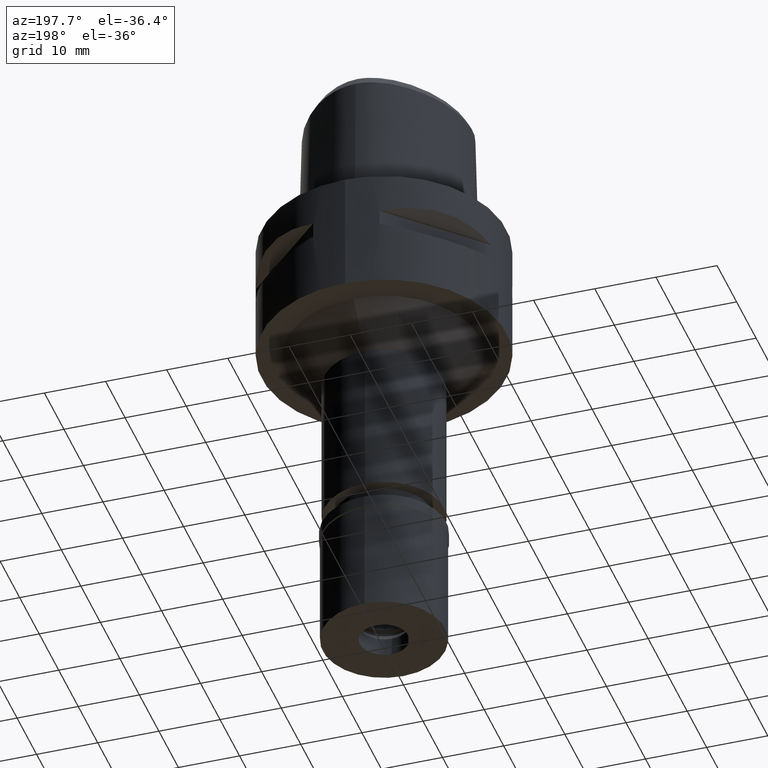
[diagram: clean part render]
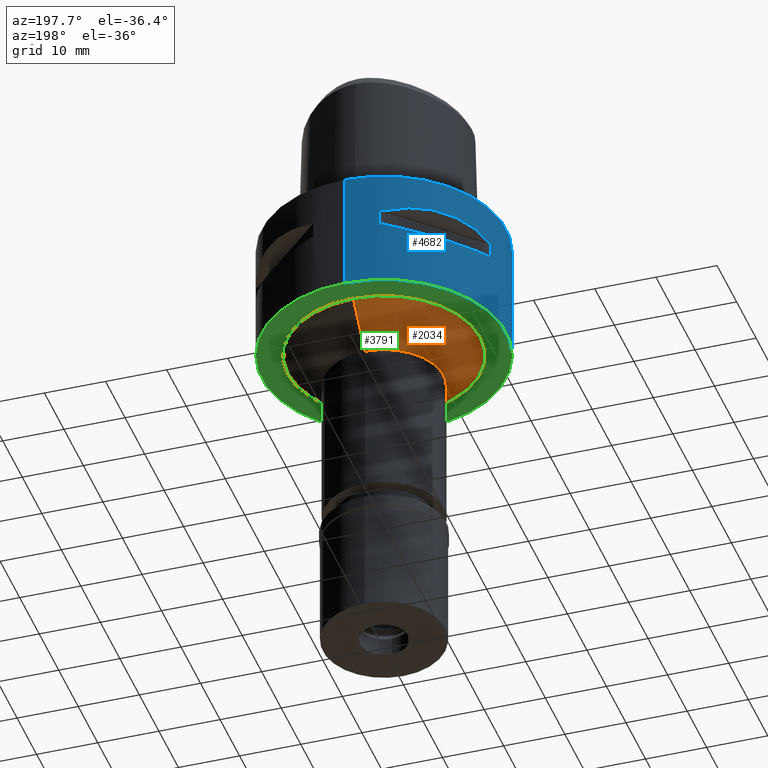
[diagram: same view with three faces highlighted in distinct colors, each labeled with its STEP entity id]
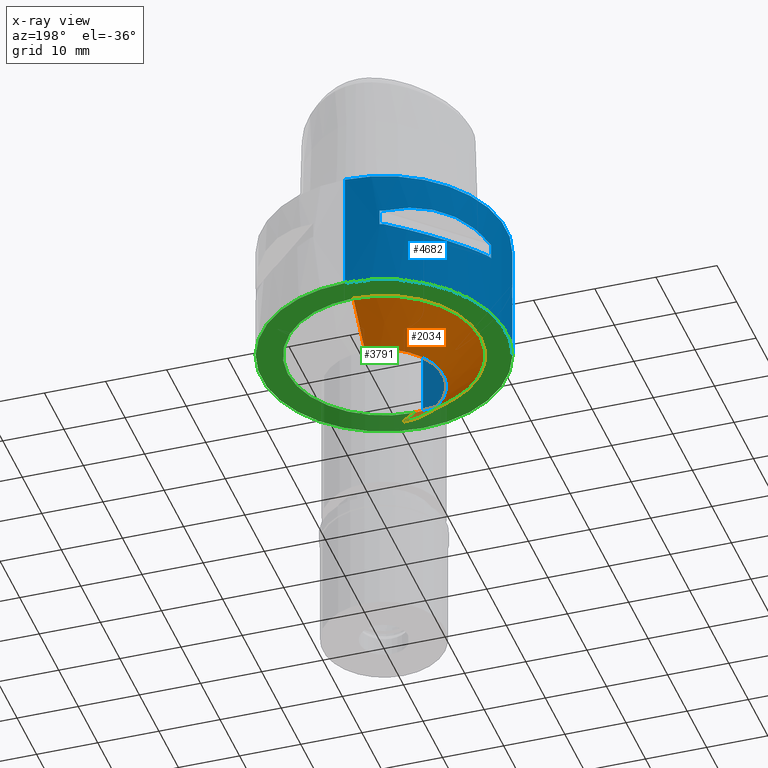
[diagram: x-ray of the same camera — body ghosted, the three highlighted faces saturated]
A machine part, auxiliary view with three faces highlighted in distinct colors.
The next image is the same camera in x-ray (body ghosted, the three faces saturated) — at least one of them is partly hidden behind the body in this view.
Their STEP definitions:

[orange] entity #2034 — the highlighted conical surface has half-angle 45 deg.
#104 = AXIS2_PLACEMENT_3D ( 'NONE', #3265, #2823, #4296 ) ;
#152 = DIRECTION ( 'NONE',  ( 0.0000000000000000000, 0.0000000000000000000, -1.000000000000000000 ) ) ;
#261 = CARTESIAN_POINT ( 'NONE',  ( 0.0000000000000000000, -15.75000000000000000, -20.00000000000000000 ) ) ;
#328 = CARTESIAN_POINT ( 'NONE',  ( 0.0000000000000000000, 9.750000000000000000, -26.00000000000000000 ) ) ;
#374 = CARTESIAN_POINT ( 'NONE',  ( 0.0000000000000000000, -9.750000000000000000, -26.00000000000000000 ) ) ;
#379 = ORIENTED_EDGE ( 'NONE', *, *, #4592, .F. ) ;
#409 = CARTESIAN_POINT ( 'NONE',  ( 0.0000000000000000000, 0.0000000000000000000, -23.00000000000000000 ) ) ;
#781 = FACE_OUTER_BOUND ( 'NONE', #2679, .T. ) ;
#878 = AXIS2_PLACEMENT_3D ( 'NONE', #4109, #152, #1970 ) ;
#934 = VERTEX_POINT ( 'NONE', #2743 ) ;
#1231 = EDGE_CURVE ( 'NONE', #3078, #934, #2854, .T. ) ;
#1348 = LINE ( 'NONE', #2066, #2396 ) ;
#1491 = AXIS2_PLACEMENT_3D ( 'NONE', #409, #2994, #1962 ) ;
#1896 = ORIENTED_EDGE ( 'NONE', *, *, #3919, .F. ) ;
#1955 = ORIENTED_EDGE ( 'NONE', *, *, #1231, .T. ) ;
#1962 = DIRECTION ( 'NONE',  ( 0.0000000000000000000, 1.000000000000000000, 0.0000000000000000000 ) ) ;
#1970 = DIRECTION ( 'NONE',  ( 0.0000000000000000000, -1.000000000000000000, 0.0000000000000000000 ) ) ;
#2034 = ADVANCED_FACE ( 'NONE', ( #781 ), #2859, .T. ) ;
#2066 = CARTESIAN_POINT ( 'NONE',  ( 0.0000000000000000000, 15.75000000000000000, -20.00000000000000000 ) ) ;
#2138 = DIRECTION ( 'NONE',  ( 0.0000000000000000000, 0.7071067811865474617, -0.7071067811865474617 ) ) ;
#2240 = ORIENTED_EDGE ( 'NONE', *, *, #2760, .T. ) ;
#2298 = CARTESIAN_POINT ( 'NONE',  ( 0.0000000000000000000, -15.75000000000000000, -20.00000000000000000 ) ) ;
#2396 = VECTOR ( 'NONE', #2416, 1000.000000000000114 ) ;
#2416 = DIRECTION ( 'NONE',  ( 0.0000000000000000000, -0.7071067811865474617, -0.7071067811865474617 ) ) ;
#2679 = EDGE_LOOP ( 'NONE', ( #379, #1896, #1955, #2240 ) ) ;
#2743 = CARTESIAN_POINT ( 'NONE',  ( 0.0000000000000000000, 15.75000000000000000, -20.00000000000000000 ) ) ;
#2760 = EDGE_CURVE ( 'NONE', #934, #3299, #1348, .T. ) ;
#2823 = DIRECTION ( 'NONE',  ( 0.0000000000000000000, 0.0000000000000000000, -1.000000000000000000 ) ) ;
#2854 = CIRCLE ( 'NONE', #104, 15.75000000000000000 ) ;
#2859 = CONICAL_SURFACE ( 'NONE', #1491, 12.75000000000000000, 0.7853981633972997312 ) ;
#2994 = DIRECTION ( 'NONE',  ( 0.0000000000000000000, 0.0000000000000000000, 1.000000000000000000 ) ) ;
#3078 = VERTEX_POINT ( 'NONE', #2298 ) ;
#3102 = VECTOR ( 'NONE', #2138, 1000.000000000000114 ) ;
#3265 = CARTESIAN_POINT ( 'NONE',  ( 0.0000000000000000000, 0.0000000000000000000, -20.00000000000000000 ) ) ;
#3272 = CIRCLE ( 'NONE', #878, 9.750000000000000000 ) ;
#3299 = VERTEX_POINT ( 'NONE', #328 ) ;
#3578 = LINE ( 'NONE', #261, #3102 ) ;
#3919 = EDGE_CURVE ( 'NONE', #3078, #4576, #3578, .T. ) ;
#4109 = CARTESIAN_POINT ( 'NONE',  ( 0.0000000000000000000, 0.0000000000000000000, -26.00000000000000000 ) ) ;
#4296 = DIRECTION ( 'NONE',  ( 0.0000000000000000000, -1.000000000000000000, 0.0000000000000000000 ) ) ;
#4576 = VERTEX_POINT ( 'NONE', #374 ) ;
#4592 = EDGE_CURVE ( 'NONE', #4576, #3299, #3272, .T. ) ;

[blue] entity #4682 — the highlighted cylindrical surface (partial cylindrical patch) has radius 20 mm, axis along (0, 0, -1).
#22 = CARTESIAN_POINT ( 'NONE',  ( -19.24906036483000094, 5.428966298579000593, -6.700000000000000178 ) ) ;
#40 = AXIS2_PLACEMENT_3D ( 'NONE', #559, #1278, #2732 ) ;
#54 = ORIENTED_EDGE ( 'NONE', *, *, #1785, .T. ) ;
#64 = FACE_OUTER_BOUND ( 'NONE', #3928, .T. ) ;
#78 = CARTESIAN_POINT ( 'NONE',  ( -17.04620345718620200, -10.46079808215881357, -10.28075718178500608 ) ) ;
#83 = CARTESIAN_POINT ( 'NONE',  ( -19.24906036483000094, 5.428966298579000593, -9.299999999999998934 ) ) ;
#101 = DIRECTION ( 'NONE',  ( 0.0000000000000000000, 0.0000000000000000000, 1.000000000000000000 ) ) ;
#122 = CARTESIAN_POINT ( 'NONE',  ( -15.24067460454800660, -13.04353085700942927, -10.59804935437007423 ) ) ;
#147 = CARTESIAN_POINT ( 'NONE',  ( -13.59286613331923554, -14.69143800708852154, -10.59808963984202279 ) ) ;
#183 = ORIENTED_EDGE ( 'NONE', *, *, #763, .F. ) ;
#185 = EDGE_CURVE ( 'NONE', #2432, #1753, #1897, .T. ) ;
#195 = CIRCLE ( 'NONE', #1948, 20.00000000000000000 ) ;
#209 = CARTESIAN_POINT ( 'NONE',  ( -11.78776565407260257, 16.23560874346874527, -5.510106948661030124 ) ) ;
#232 = VERTEX_POINT ( 'NONE', #4511 ) ;
#238 = ORIENTED_EDGE ( 'NONE', *, *, #3240, .T. ) ;
#262 = ORIENTED_EDGE ( 'NONE', *, *, #4171, .T. ) ;
#265 = DIRECTION ( 'NONE',  ( -0.9624530182415160784, 0.2714483149290045083, 0.0000000000000000000 ) ) ;
#277 = CARTESIAN_POINT ( 'NONE',  ( -16.99353821201610160, 10.54606745823076075, -10.29406776248773525 ) ) ;
#279 = CIRCLE ( 'NONE', #2942, 20.00000000000000711 ) ;
#280 = CARTESIAN_POINT ( 'NONE',  ( -19.06685920573999837, -6.037787676659999825, -6.700000000000000178 ) ) ;
#344 = CARTESIAN_POINT ( 'NONE',  ( -10.48392761238963189, 17.03197491928957419, -10.28439099668885959 ) ) ;
#370 = CARTESIAN_POINT ( 'NONE',  ( -14.69143800708833680, 13.59286613331856408, -10.59808963984166041 ) ) ;
#401 = EDGE_CURVE ( 'NONE', #2195, #1337, #1193, .T. ) ;
#414 = CARTESIAN_POINT ( 'NONE',  ( -6.037787676659999825, 19.06685920573999837, -6.700000000000000178 ) ) ;
#439 = CARTESIAN_POINT ( 'NONE',  ( 0.0000000000000000000, 20.00000000000000000, 0.0000000000000000000 ) ) ;
#463 = CYLINDRICAL_SURFACE ( 'NONE', #734, 20.00000000000000000 ) ;
#476 = CARTESIAN_POINT ( 'NONE',  ( -17.11329306682763018, -10.35096251251622235, -10.26330621669029242 ) ) ;
#503 = CARTESIAN_POINT ( 'NONE',  ( -17.07309310408707148, -10.41688921769623910, -10.27380911531041008 ) ) ;
#528 = CARTESIAN_POINT ( 'NONE',  ( -13.03584482972175529, -15.24842641774012897, -5.401917027256927462 ) ) ;
#559 = CARTESIAN_POINT ( 'NONE',  ( 0.0000000000000000000, 1.265672466918999865E-14, -9.299999999999998934 ) ) ;
#597 = EDGE_LOOP ( 'NONE', ( #2270, #2146, #3987, #4189, #629, #956, #2286, #2737 ) ) ;
#625 = LINE ( 'NONE', #2084, #4008 ) ;
#626 = CARTESIAN_POINT ( 'NONE',  ( -17.89933467640222631, -9.064227960972582210, -5.942799019125479809 ) ) ;
#629 = ORIENTED_EDGE ( 'NONE', *, *, #3415, .T. ) ;
#635 = CARTESIAN_POINT ( 'NONE',  ( -15.24842641776397123, 13.03584482969793967, -5.401917027265890958 ) ) ;
#650 = CIRCLE ( 'NONE', #2938, 20.00000000000000711 ) ;
#717 = LINE ( 'NONE', #2896, #4354 ) ;
#734 = AXIS2_PLACEMENT_3D ( 'NONE', #1564, #2602, #3021 ) ;
#758 = CARTESIAN_POINT ( 'NONE',  ( 0.0000000000000000000, 1.265672466918999865E-14, -6.700000000000000178 ) ) ;
#763 = EDGE_CURVE ( 'NONE', #3494, #4624, #717, .T. ) ;
#786 = VERTEX_POINT ( 'NONE', #2829 ) ;
#793 = CIRCLE ( 'NONE', #40, 20.00000000000000000 ) ;
#826 = EDGE_CURVE ( 'NONE', #973, #3255, #3773, .T. ) ;
#875 = DIRECTION ( 'NONE',  ( -0.9624530182415160784, -0.2714483149290045083, 0.0000000000000000000 ) ) ;
#902 = CARTESIAN_POINT ( 'NONE',  ( -6.037787676659999825, -19.06685920573999837, -9.299999999999998934 ) ) ;
#904 = CARTESIAN_POINT ( 'NONE',  ( -7.588842109405632641, -18.57569612330578224, -6.267301168158926572 ) ) ;
#942 = VERTEX_POINT ( 'NONE', #1984 ) ;
#956 = ORIENTED_EDGE ( 'NONE', *, *, #2816, .F. ) ;
#959 = CIRCLE ( 'NONE', #1428, 20.00000000000000000 ) ;
#973 = VERTEX_POINT ( 'NONE', #4608 ) ;
#1030 = CARTESIAN_POINT ( 'NONE',  ( -6.037787676656000357, 19.06685920573999837, -9.299999999999998934 ) ) ;
#1042 = DIRECTION ( 'NONE',  ( 0.0000000000000000000, 0.0000000000000000000, 1.000000000000000000 ) ) ;
#1052 = AXIS2_PLACEMENT_3D ( 'NONE', #758, #2222, #1256 ) ;
#1057 = CARTESIAN_POINT ( 'NONE',  ( -17.00564674891200312, 10.52654956716414603, -10.29104290631410557 ) ) ;
#1060 = VERTEX_POINT ( 'NONE', #902 ) ;
#1087 = EDGE_CURVE ( 'NONE', #942, #2195, #3816, .T. ) ;
#1145 = CARTESIAN_POINT ( 'NONE',  ( -17.03197491928961327, -10.48392761238962478, -10.28439099668888623 ) ) ;
#1193 = B_SPLINE_CURVE_WITH_KNOTS ( 'NONE', 3,
 ( #3865, #1708, #626, #2062, #1234, #528, #2718, #1656, #904, #1985 ),
 .UNSPECIFIED., .F., .F.,
 ( 4, 2, 2, 2, 4 ),
 ( 0.0000000000000000000, 0.2500000000000000000, 0.5000000000000000000, 0.7500000000000000000, 1.000000000000000000 ),
 .UNSPECIFIED. ) ;
#1215 = CARTESIAN_POINT ( 'NONE',  ( -19.24906036483000094, 5.428966298580000682, -9.299999999999998934 ) ) ;
#1234 = CARTESIAN_POINT ( 'NONE',  ( -15.24842641774013252, -13.03584482972175707, -5.401930550037072010 ) ) ;
#1248 = CARTESIAN_POINT ( 'NONE',  ( 0.0000000000000000000, 1.265672466918999865E-14, -6.700000000000000178 ) ) ;
#1256 = DIRECTION ( 'NONE',  ( -0.2714483149290045083, 0.9624530182415160784, 0.0000000000000000000 ) ) ;
#1278 = DIRECTION ( 'NONE',  ( 0.0000000000000000000, 0.0000000000000000000, -1.000000000000000000 ) ) ;
#1314 = CARTESIAN_POINT ( 'NONE',  ( 0.0000000000000000000, 20.00000000000000000, -20.00000000000000000 ) ) ;
#1337 = VERTEX_POINT ( 'NONE', #2937 ) ;
#1400 = CARTESIAN_POINT ( 'NONE',  ( -16.96779488243643641, 10.58740791271516279, -10.30043526206624982 ) ) ;
#1428 = AXIS2_PLACEMENT_3D ( 'NONE', #3617, #4615, #4711 ) ;
#1449 = CARTESIAN_POINT ( 'NONE',  ( -17.38810193308528795, -9.886368560434451780, -10.18582677984705676 ) ) ;
#1496 = DIRECTION ( 'NONE',  ( 0.0000000000000000000, 0.0000000000000000000, -1.000000000000000000 ) ) ;
#1498 = VERTEX_POINT ( 'NONE', #2027 ) ;
#1511 = ORIENTED_EDGE ( 'NONE', *, *, #3220, .F. ) ;
#1520 = CARTESIAN_POINT ( 'NONE',  ( -6.037787676659999825, -19.06685920573999837, -9.299999999999998934 ) ) ;
#1527 = FACE_BOUND ( 'NONE', #597, .T. ) ;
#1564 = CARTESIAN_POINT ( 'NONE',  ( 0.0000000000000000000, 1.265672466918999865E-14, 3.350000000000000089 ) ) ;
#1584 = CARTESIAN_POINT ( 'NONE',  ( -10.54606745823081049, -16.99353821201611936, -10.29406776248777078 ) ) ;
#1605 = CARTESIAN_POINT ( 'NONE',  ( 0.0000000000000000000, 1.265672466918999865E-14, -6.700000000000000178 ) ) ;
#1629 = EDGE_CURVE ( 'NONE', #3557, #3255, #1716, .T. ) ;
#1634 = DIRECTION ( 'NONE',  ( 0.0000000000000000000, 1.000000000000000000, 0.0000000000000000000 ) ) ;
#1635 = AXIS2_PLACEMENT_3D ( 'NONE', #4378, #3159, #265 ) ;
#1656 = CARTESIAN_POINT ( 'NONE',  ( -9.064296220445351437, -17.89930010962306284, -5.942778734625640880 ) ) ;
#1686 = B_SPLINE_CURVE_WITH_KNOTS ( 'NONE', 3,
 ( #2700, #1746, #3496, #209, #4230, #635, #2780, #3130, #3206, #2421 ),
 .UNSPECIFIED., .F., .F.,
 ( 4, 2, 2, 2, 4 ),
 ( 0.0000000000000000000, 0.2500000000000000000, 0.5000000000000000000, 0.7500000000000000000, 1.000000000000000000 ),
 .UNSPECIFIED. ) ;
#1708 = CARTESIAN_POINT ( 'NONE',  ( -18.57571147347043450, -7.588793634791463738, -6.267314691158818007 ) ) ;
#1716 = CIRCLE ( 'NONE', #1635, 20.00000000000000000 ) ;
#1739 = CARTESIAN_POINT ( 'NONE',  ( -17.88526274347858447, 9.102657680285229702, -10.06884320373687380 ) ) ;
#1746 = CARTESIAN_POINT ( 'NONE',  ( -7.588793634823589151, 18.57571147346028795, -6.267314691149851846 ) ) ;
#1753 = VERTEX_POINT ( 'NONE', #414 ) ;
#1754 = AXIS2_PLACEMENT_3D ( 'NONE', #1605, #3817, #875 ) ;
#1764 = CARTESIAN_POINT ( 'NONE',  ( -16.83802176568580933, 10.79324770715564696, -10.33148935319440120 ) ) ;
#1785 = EDGE_CURVE ( 'NONE', #1337, #1498, #3712, .T. ) ;
#1800 = VERTEX_POINT ( 'NONE', #2600 ) ;
#1808 = CARTESIAN_POINT ( 'NONE',  ( -9.886368560432201136, 17.38810193308599850, -10.18582677984641549 ) ) ;
#1809 = CARTESIAN_POINT ( 'NONE',  ( -18.37435100509406638, -7.974729623736128481, -9.808037949574913483 ) ) ;
#1835 = EDGE_CURVE ( 'NONE', #3557, #4414, #3443, .T. ) ;
#1843 = ORIENTED_EDGE ( 'NONE', *, *, #2003, .F. ) ;
#1872 = CARTESIAN_POINT ( 'NONE',  ( -12.72622750481284903, -15.46304525447651734, -10.55929324096001487 ) ) ;
#1897 = CIRCLE ( 'NONE', #1052, 20.00000000000000000 ) ;
#1937 = CARTESIAN_POINT ( 'NONE',  ( -10.52654956716422063, -17.00564674891198891, -10.29104290631413221 ) ) ;
#1948 = AXIS2_PLACEMENT_3D ( 'NONE', #2043, #4589, #1634 ) ;
#1965 = DIRECTION ( 'NONE',  ( 0.0000000000000000000, 0.0000000000000000000, -1.000000000000000000 ) ) ;
#1984 = CARTESIAN_POINT ( 'NONE',  ( -19.24906036483000094, -5.428966298580000682, -6.700000000000000178 ) ) ;
#1985 = CARTESIAN_POINT ( 'NONE',  ( -6.037787676659999825, -19.06685920573999837, -6.700000000000000178 ) ) ;
#2003 = EDGE_CURVE ( 'NONE', #1800, #1060, #4630, .T. ) ;
#2027 = CARTESIAN_POINT ( 'NONE',  ( -5.428966298579000593, -19.24906036483000094, -6.700000000000000178 ) ) ;
#2043 = CARTESIAN_POINT ( 'NONE',  ( 0.0000000000000000000, 1.265672466918999865E-14, -20.00000000000000000 ) ) ;
#2062 = CARTESIAN_POINT ( 'NONE',  ( -16.23560874349853478, -11.78776565403154741, -5.510106948674478922 ) ) ;
#2070 = VERTEX_POINT ( 'NONE', #2309 ) ;
#2084 = CARTESIAN_POINT ( 'NONE',  ( -19.24906036483000094, -5.428966298579000593, -6.700000000000000178 ) ) ;
#2087 = CARTESIAN_POINT ( 'NONE',  ( -15.46304525447618694, 12.72622750481166065, -10.55929324095938782 ) ) ;
#2094 = CARTESIAN_POINT ( 'NONE',  ( 0.0000000000000000000, 20.00000000000000000, 0.0000000000000000000 ) ) ;
#2146 = ORIENTED_EDGE ( 'NONE', *, *, #1835, .F. ) ;
#2154 = CARTESIAN_POINT ( 'NONE',  ( -18.81740308416140905, -6.825550513455381996, -9.519762796231688640 ) ) ;
#2180 = CARTESIAN_POINT ( 'NONE',  ( -10.41688921769588561, 17.07309310408716030, -10.27380911531028751 ) ) ;
#2195 = VERTEX_POINT ( 'NONE', #280 ) ;
#2222 = DIRECTION ( 'NONE',  ( 0.0000000000000000000, 0.0000000000000000000, 1.000000000000000000 ) ) ;
#2245 = AXIS2_PLACEMENT_3D ( 'NONE', #2293, #101, #4539 ) ;
#2270 = ORIENTED_EDGE ( 'NONE', *, *, #2910, .T. ) ;
#2286 = ORIENTED_EDGE ( 'NONE', *, *, #185, .T. ) ;
#2289 = CARTESIAN_POINT ( 'NONE',  ( -16.20025983931274283, -11.83046278585393729, -10.49456541975160384 ) ) ;
#2293 = CARTESIAN_POINT ( 'NONE',  ( 0.0000000000000000000, 1.265672466918999865E-14, -6.700000000000000178 ) ) ;
#2309 = CARTESIAN_POINT ( 'NONE',  ( -19.24906036483000094, -5.428966298579000593, -9.299999999999998934 ) ) ;
#2354 = VERTEX_POINT ( 'NONE', #1314 ) ;
#2410 = EDGE_CURVE ( 'NONE', #942, #2070, #625, .T. ) ;
#2421 = CARTESIAN_POINT ( 'NONE',  ( -19.06685920573999837, 6.037787676659999825, -6.700000000000000178 ) ) ;
#2432 = VERTEX_POINT ( 'NONE', #2687 ) ;
#2447 = LINE ( 'NONE', #4716, #2551 ) ;
#2508 = CARTESIAN_POINT ( 'NONE',  ( -19.06685920573999837, -6.037787676656000357, -9.299999999999998934 ) ) ;
#2530 = CARTESIAN_POINT ( 'NONE',  ( -9.258624582130485337, 17.73693809362665164, -10.07196314004843352 ) ) ;
#2548 = CIRCLE ( 'NONE', #4486, 20.00000000000000711 ) ;
#2551 = VECTOR ( 'NONE', #1042, 1000.000000000000000 ) ;
#2553 = CARTESIAN_POINT ( 'NONE',  ( -6.825550513452456336, 18.81740308416231500, -9.519762796230851976 ) ) ;
#2576 = CARTESIAN_POINT ( 'NONE',  ( -9.102657680280989538, -17.88526274347993450, -10.06884320373569608 ) ) ;
#2597 = CARTESIAN_POINT ( 'NONE',  ( -7.613705726455988199, -18.56782271116848904, -9.739635053951699817 ) ) ;
#2600 = CARTESIAN_POINT ( 'NONE',  ( -19.06685920573999837, -6.037787676656000357, -9.299999999999998934 ) ) ;
#2602 = DIRECTION ( 'NONE',  ( 0.0000000000000000000, 0.0000000000000000000, -1.000000000000000000 ) ) ;
#2663 = CARTESIAN_POINT ( 'NONE',  ( -10.64933512883080624, -16.92907764914579616, -10.30991069787626735 ) ) ;
#2684 = VERTEX_POINT ( 'NONE', #4172 ) ;
#2687 = CARTESIAN_POINT ( 'NONE',  ( -5.428966298579000593, 19.24906036483000094, -6.700000000000000178 ) ) ;
#2700 = CARTESIAN_POINT ( 'NONE',  ( -6.037787676659999825, 19.06685920573999837, -6.700000000000000178 ) ) ;
#2718 = CARTESIAN_POINT ( 'NONE',  ( -11.78782756882609206, -16.23556379045567866, -5.510086664174642657 ) ) ;
#2732 = DIRECTION ( 'NONE',  ( -0.2714483149290045083, -0.9624530182415160784, 0.0000000000000000000 ) ) ;
#2737 = ORIENTED_EDGE ( 'NONE', *, *, #4524, .T. ) ;
#2756 = DIRECTION ( 'NONE',  ( 0.0000000000000000000, 0.0000000000000000000, -1.000000000000000000 ) ) ;
#2780 = CARTESIAN_POINT ( 'NONE',  ( -16.23556379048548948, 11.78782756878505644, -5.510086664188085237 ) ) ;
#2800 = DIRECTION ( 'NONE',  ( 0.0000000000000000000, 0.0000000000000000000, -1.000000000000000000 ) ) ;
#2816 = EDGE_CURVE ( 'NONE', #2432, #2684, #3123, .T. ) ;
#2829 = CARTESIAN_POINT ( 'NONE',  ( -5.428966298580000682, -19.24906036483000094, -9.299999999999998934 ) ) ;
#2874 = CARTESIAN_POINT ( 'NONE',  ( -10.46079808215863771, 17.04620345718623753, -10.28075718178493858 ) ) ;
#2896 = CARTESIAN_POINT ( 'NONE',  ( 0.0000000000000000000, -20.00000000000000000, 0.0000000000000000000 ) ) ;
#2910 = EDGE_CURVE ( 'NONE', #232, #4414, #2548, .T. ) ;
#2937 = CARTESIAN_POINT ( 'NONE',  ( -6.037787676659999825, -19.06685920573999837, -6.700000000000000178 ) ) ;
#2938 = AXIS2_PLACEMENT_3D ( 'NONE', #3105, #2756, #3053 ) ;
#2942 = AXIS2_PLACEMENT_3D ( 'NONE', #3412, #1965, #4517 ) ;
#2970 = CARTESIAN_POINT ( 'NONE',  ( -10.58740791271525161, -16.96779488243645773, -10.30043526206630844 ) ) ;
#3021 = DIRECTION ( 'NONE',  ( 0.0000000000000000000, -1.000000000000000000, 0.0000000000000000000 ) ) ;
#3026 = EDGE_CURVE ( 'NONE', #1800, #2070, #650, .T. ) ;
#3042 = CARTESIAN_POINT ( 'NONE',  ( -11.07873582669489920, -16.65304730897261010, -10.37252388421141269 ) ) ;
#3053 = DIRECTION ( 'NONE',  ( -0.9533429602871387187, -0.3018893838328123858, 0.0000000000000000000 ) ) ;
#3054 = EDGE_CURVE ( 'NONE', #786, #1060, #793, .T. ) ;
#3105 = CARTESIAN_POINT ( 'NONE',  ( 0.0000000000000000000, 1.265672466918999865E-14, -9.299999999999998934 ) ) ;
#3123 = LINE ( 'NONE', #3898, #3648 ) ;
#3130 = CARTESIAN_POINT ( 'NONE',  ( -17.89930010964598850, 9.064296220400109405, -5.942778734639085236 ) ) ;
#3159 = DIRECTION ( 'NONE',  ( 0.0000000000000000000, 0.0000000000000000000, -1.000000000000000000 ) ) ;
#3171 = VECTOR ( 'NONE', #3796, 1000.000000000000000 ) ;
#3198 = CARTESIAN_POINT ( 'NONE',  ( -18.56782271116713900, 7.613705726460239021, -9.739635053952877541 ) ) ;
#3206 = CARTESIAN_POINT ( 'NONE',  ( -18.57569612331598208, 7.588842109373500122, -6.267301168167890069 ) ) ;
#3220 = EDGE_CURVE ( 'NONE', #786, #1498, #2447, .T. ) ;
#3221 = CARTESIAN_POINT ( 'NONE',  ( -16.92907764914576774, 10.64933512883065347, -10.30991069787617676 ) ) ;
#3240 = EDGE_CURVE ( 'NONE', #3453, #2354, #3622, .T. ) ;
#3255 = VERTEX_POINT ( 'NONE', #3905 ) ;
#3271 = DIRECTION ( 'NONE',  ( 0.0000000000000000000, 0.0000000000000000000, -1.000000000000000000 ) ) ;
#3273 = CARTESIAN_POINT ( 'NONE',  ( -17.73693809362544371, -9.258624582134340031, -10.07196314004953308 ) ) ;
#3295 = CARTESIAN_POINT ( 'NONE',  ( -13.04353085700981651, 15.24067460454939038, -10.59804935437078477 ) ) ;
#3341 = CARTESIAN_POINT ( 'NONE',  ( -10.79324770715592585, -16.83802176568588749, -10.33148935319455575 ) ) ;
#3409 = CARTESIAN_POINT ( 'NONE',  ( -11.64036391732772024, -16.27164763637228262, -10.44610182776619567 ) ) ;
#3412 = CARTESIAN_POINT ( 'NONE',  ( 0.0000000000000000000, 1.265672466918999865E-14, -9.299999999999998934 ) ) ;
#3415 = EDGE_CURVE ( 'NONE', #973, #2684, #279, .T. ) ;
#3443 = LINE ( 'NONE', #83, #3171 ) ;
#3453 = VERTEX_POINT ( 'NONE', #439 ) ;
#3494 = VERTEX_POINT ( 'NONE', #4060 ) ;
#3496 = CARTESIAN_POINT ( 'NONE',  ( -9.064227961017829571, 17.89933467637932196, -5.942799019112030123 ) ) ;
#3500 = DIRECTION ( 'NONE',  ( -0.9533429602871387187, 0.3018893838328123858, 0.0000000000000000000 ) ) ;
#3557 = VERTEX_POINT ( 'NONE', #1215 ) ;
#3565 = CARTESIAN_POINT ( 'NONE',  ( -16.65304730897246444, 11.07873582669437340, -10.37252388421113025 ) ) ;
#3591 = CARTESIAN_POINT ( 'NONE',  ( -16.27164763637202682, 11.64036391732682141, -10.44610182776571783 ) ) ;
#3614 = CARTESIAN_POINT ( 'NONE',  ( -19.06685920573999837, 6.037787676659999825, -9.299999999999998934 ) ) ;
#3617 = CARTESIAN_POINT ( 'NONE',  ( 0.0000000000000000000, 1.265672466918999865E-14, 0.0000000000000000000 ) ) ;
#3619 = ORIENTED_EDGE ( 'NONE', *, *, #2410, .F. ) ;
#3622 = LINE ( 'NONE', #2094, #4640 ) ;
#3648 = VECTOR ( 'NONE', #2800, 1000.000000000000000 ) ;
#3661 = CARTESIAN_POINT ( 'NONE',  ( -11.83046278585409539, 16.20025983931430247, -10.49456541975229840 ) ) ;
#3663 = CARTESIAN_POINT ( 'NONE',  ( -17.20615142661377206, -10.19668967435975304, -10.23823386088587561 ) ) ;
#3712 = CIRCLE ( 'NONE', #2245, 20.00000000000000711 ) ;
#3773 = B_SPLINE_CURVE_WITH_KNOTS ( 'NONE', 3,
 ( #1030, #2553, #3937, #2530, #1808, #4002, #4322, #2180, #2874, #344, #3661, #3295, #370, #2087, #3591, #3565, #1764, #3221, #1400, #277, #1057, #1739, #3198, #3614 ),
 .UNSPECIFIED., .F., .F.,
 ( 4, 1, 1, 1, 1, 1, 2, 2, 2, 1, 1, 1, 1, 1, 2, 2, 4 ),
 ( 0.0000000000000000000, 0.1249999999999983069, 0.1874999999999973632, 0.2187499999999970857, 0.2343749999999968359, 0.2421874999999966138, 0.2460937499999967526, 0.2499999999999968914, 0.4999999999999934497, 0.6249999999999920064, 0.6874999999999913403, 0.7187499999999911182, 0.7343749999999910072, 0.7421874999999911182, 0.7460937499999913403, 0.7499999999999914513, 1.000000000000000000 ),
 .UNSPECIFIED. ) ;
#3796 = DIRECTION ( 'NONE',  ( 0.0000000000000000000, 0.0000000000000000000, 1.000000000000000000 ) ) ;
#3808 = ORIENTED_EDGE ( 'NONE', *, *, #3026, .T. ) ;
#3816 = CIRCLE ( 'NONE', #1754, 20.00000000000000000 ) ;
#3817 = DIRECTION ( 'NONE',  ( 0.0000000000000000000, 0.0000000000000000000, 1.000000000000000000 ) ) ;
#3851 = DIRECTION ( 'NONE',  ( 0.0000000000000000000, 0.0000000000000000000, 1.000000000000000000 ) ) ;
#3865 = CARTESIAN_POINT ( 'NONE',  ( -19.06685920573999837, -6.037787676659999825, -6.700000000000000178 ) ) ;
#3898 = CARTESIAN_POINT ( 'NONE',  ( -5.428966298579000593, 19.24906036483000094, -6.700000000000000178 ) ) ;
#3901 = ORIENTED_EDGE ( 'NONE', *, *, #1087, .T. ) ;
#3905 = CARTESIAN_POINT ( 'NONE',  ( -19.06685920573999837, 6.037787676659999825, -9.299999999999998934 ) ) ;
#3928 = EDGE_LOOP ( 'NONE', ( #4327, #183, #262, #238 ) ) ;
#3937 = CARTESIAN_POINT ( 'NONE',  ( -7.974729623730985040, 18.37435100509567221, -9.808037949573455094 ) ) ;
#3987 = ORIENTED_EDGE ( 'NONE', *, *, #1629, .T. ) ;
#4002 = CARTESIAN_POINT ( 'NONE',  ( -10.19668967435855222, 17.20615142661412733, -10.23823386088551501 ) ) ;
#4008 = VECTOR ( 'NONE', #4535, 1000.000000000000000 ) ;
#4060 = CARTESIAN_POINT ( 'NONE',  ( 0.0000000000000000000, -20.00000000000000000, 0.0000000000000000000 ) ) ;
#4148 = CARTESIAN_POINT ( 'NONE',  ( 0.0000000000000000000, -20.00000000000000000, -20.00000000000000000 ) ) ;
#4158 = EDGE_LOOP ( 'NONE', ( #54, #1511, #4367, #1843, #3808, #3619, #3901, #4611 ) ) ;
#4171 = EDGE_CURVE ( 'NONE', #3494, #3453, #959, .T. ) ;
#4172 = CARTESIAN_POINT ( 'NONE',  ( -5.428966298579000593, 19.24906036483000094, -9.299999999999998934 ) ) ;
#4189 = ORIENTED_EDGE ( 'NONE', *, *, #826, .F. ) ;
#4230 = CARTESIAN_POINT ( 'NONE',  ( -13.03584482969792901, 15.24842641776398366, -5.401930550028109401 ) ) ;
#4322 = CARTESIAN_POINT ( 'NONE',  ( -10.35096251251560773, 17.11329306682781493, -10.26330621669010057 ) ) ;
#4327 = ORIENTED_EDGE ( 'NONE', *, *, #4705, .T. ) ;
#4354 = VECTOR ( 'NONE', #3271, 1000.000000000000000 ) ;
#4367 = ORIENTED_EDGE ( 'NONE', *, *, #3054, .T. ) ;
#4378 = CARTESIAN_POINT ( 'NONE',  ( 0.0000000000000000000, 1.265672466918999865E-14, -9.299999999999998934 ) ) ;
#4414 = VERTEX_POINT ( 'NONE', #22 ) ;
#4455 = FACE_BOUND ( 'NONE', #4158, .T. ) ;
#4486 = AXIS2_PLACEMENT_3D ( 'NONE', #1248, #3851, #3500 ) ;
#4511 = CARTESIAN_POINT ( 'NONE',  ( -19.06685920573999837, 6.037787676659999825, -6.700000000000000178 ) ) ;
#4517 = DIRECTION ( 'NONE',  ( -0.3018893838328123858, 0.9533429602871387187, 0.0000000000000000000 ) ) ;
#4524 = EDGE_CURVE ( 'NONE', #1753, #232, #1686, .T. ) ;
#4535 = DIRECTION ( 'NONE',  ( 0.0000000000000000000, 0.0000000000000000000, -1.000000000000000000 ) ) ;
#4539 = DIRECTION ( 'NONE',  ( -0.3018893838328123858, -0.9533429602871387187, 0.0000000000000000000 ) ) ;
#4589 = DIRECTION ( 'NONE',  ( 0.0000000000000000000, 0.0000000000000000000, 1.000000000000000000 ) ) ;
#4608 = CARTESIAN_POINT ( 'NONE',  ( -6.037787676656000357, 19.06685920573999837, -9.299999999999998934 ) ) ;
#4611 = ORIENTED_EDGE ( 'NONE', *, *, #401, .T. ) ;
#4615 = DIRECTION ( 'NONE',  ( 0.0000000000000000000, 0.0000000000000000000, -1.000000000000000000 ) ) ;
#4624 = VERTEX_POINT ( 'NONE', #4148 ) ;
#4630 = B_SPLINE_CURVE_WITH_KNOTS ( 'NONE', 3,
 ( #2508, #2154, #1809, #3273, #1449, #3663, #476, #503, #78, #1145, #2289, #122, #147, #1872, #3409, #3042, #3341, #2663, #2970, #1584, #1937, #2576, #2597, #1520 ),
 .UNSPECIFIED., .F., .F.,
 ( 4, 1, 1, 1, 1, 1, 2, 2, 2, 1, 1, 1, 1, 1, 2, 2, 4 ),
 ( 0.0000000000000000000, 0.1250000000000066058, 0.1875000000000100198, 0.2187500000000118239, 0.2343750000000126010, 0.2421875000000127676, 0.2460937500000127398, 0.2500000000000126565, 0.5000000000000093259, 0.6250000000000077716, 0.6875000000000069944, 0.7187500000000065503, 0.7343750000000064393, 0.7421875000000064393, 0.7460937500000063283, 0.7500000000000062172, 1.000000000000000000 ),
 .UNSPECIFIED. ) ;
#4640 = VECTOR ( 'NONE', #1496, 1000.000000000000000 ) ;
#4682 = ADVANCED_FACE ( 'NONE', ( #64, #1527, #4455 ), #463, .T. ) ;
#4705 = EDGE_CURVE ( 'NONE', #2354, #4624, #195, .T. ) ;
#4711 = DIRECTION ( 'NONE',  ( 0.0000000000000000000, -1.000000000000000000, 0.0000000000000000000 ) ) ;
#4716 = CARTESIAN_POINT ( 'NONE',  ( -5.428966298579000593, -19.24906036483000094, -9.299999999999998934 ) ) ;

[green] entity #3791 — the highlighted planar face has unit normal (0, 0, -1).
#104 = AXIS2_PLACEMENT_3D ( 'NONE', #3265, #2823, #4296 ) ;
#195 = CIRCLE ( 'NONE', #1948, 20.00000000000000000 ) ;
#242 = CARTESIAN_POINT ( 'NONE',  ( 0.0000000000000000000, 0.0000000000000000000, -20.00000000000000000 ) ) ;
#595 = FACE_BOUND ( 'NONE', #4408, .T. ) ;
#622 = DIRECTION ( 'NONE',  ( 0.0000000000000000000, 0.0000000000000000000, -1.000000000000000000 ) ) ;
#715 = CIRCLE ( 'NONE', #2174, 15.75000000000000000 ) ;
#934 = VERTEX_POINT ( 'NONE', #2743 ) ;
#1165 = ORIENTED_EDGE ( 'NONE', *, *, #3972, .F. ) ;
#1231 = EDGE_CURVE ( 'NONE', #3078, #934, #2854, .T. ) ;
#1259 = AXIS2_PLACEMENT_3D ( 'NONE', #2161, #3992, #4290 ) ;
#1314 = CARTESIAN_POINT ( 'NONE',  ( 0.0000000000000000000, 20.00000000000000000, -20.00000000000000000 ) ) ;
#1634 = DIRECTION ( 'NONE',  ( 0.0000000000000000000, 1.000000000000000000, 0.0000000000000000000 ) ) ;
#1704 = DIRECTION ( 'NONE',  ( 0.0000000000000000000, -1.000000000000000000, 0.0000000000000000000 ) ) ;
#1948 = AXIS2_PLACEMENT_3D ( 'NONE', #2043, #4589, #1634 ) ;
#2043 = CARTESIAN_POINT ( 'NONE',  ( 0.0000000000000000000, 1.265672466918999865E-14, -20.00000000000000000 ) ) ;
#2058 = PLANE ( 'NONE',  #2788 ) ;
#2161 = CARTESIAN_POINT ( 'NONE',  ( 0.0000000000000000000, 1.265672466918999865E-14, -20.00000000000000000 ) ) ;
#2174 = AXIS2_PLACEMENT_3D ( 'NONE', #2717, #2361, #4558 ) ;
#2187 = EDGE_CURVE ( 'NONE', #934, #3078, #715, .T. ) ;
#2298 = CARTESIAN_POINT ( 'NONE',  ( 0.0000000000000000000, -15.75000000000000000, -20.00000000000000000 ) ) ;
#2354 = VERTEX_POINT ( 'NONE', #1314 ) ;
#2361 = DIRECTION ( 'NONE',  ( 0.0000000000000000000, 0.0000000000000000000, -1.000000000000000000 ) ) ;
#2502 = ORIENTED_EDGE ( 'NONE', *, *, #1231, .F. ) ;
#2717 = CARTESIAN_POINT ( 'NONE',  ( 0.0000000000000000000, 0.0000000000000000000, -20.00000000000000000 ) ) ;
#2743 = CARTESIAN_POINT ( 'NONE',  ( 0.0000000000000000000, 15.75000000000000000, -20.00000000000000000 ) ) ;
#2788 = AXIS2_PLACEMENT_3D ( 'NONE', #242, #622, #1704 ) ;
#2823 = DIRECTION ( 'NONE',  ( 0.0000000000000000000, 0.0000000000000000000, -1.000000000000000000 ) ) ;
#2854 = CIRCLE ( 'NONE', #104, 15.75000000000000000 ) ;
#3078 = VERTEX_POINT ( 'NONE', #2298 ) ;
#3084 = ORIENTED_EDGE ( 'NONE', *, *, #4705, .F. ) ;
#3140 = FACE_OUTER_BOUND ( 'NONE', #3815, .T. ) ;
#3265 = CARTESIAN_POINT ( 'NONE',  ( 0.0000000000000000000, 0.0000000000000000000, -20.00000000000000000 ) ) ;
#3791 = ADVANCED_FACE ( 'NONE', ( #3140, #595 ), #2058, .T. ) ;
#3815 = EDGE_LOOP ( 'NONE', ( #3084, #1165 ) ) ;
#3972 = EDGE_CURVE ( 'NONE', #4624, #2354, #4493, .T. ) ;
#3992 = DIRECTION ( 'NONE',  ( 0.0000000000000000000, 0.0000000000000000000, 1.000000000000000000 ) ) ;
#4148 = CARTESIAN_POINT ( 'NONE',  ( 0.0000000000000000000, -20.00000000000000000, -20.00000000000000000 ) ) ;
#4214 = ORIENTED_EDGE ( 'NONE', *, *, #2187, .F. ) ;
#4290 = DIRECTION ( 'NONE',  ( 0.0000000000000000000, -1.000000000000000000, 0.0000000000000000000 ) ) ;
#4296 = DIRECTION ( 'NONE',  ( 0.0000000000000000000, -1.000000000000000000, 0.0000000000000000000 ) ) ;
#4408 = EDGE_LOOP ( 'NONE', ( #4214, #2502 ) ) ;
#4493 = CIRCLE ( 'NONE', #1259, 20.00000000000000000 ) ;
#4558 = DIRECTION ( 'NONE',  ( 0.0000000000000000000, 1.000000000000000000, 0.0000000000000000000 ) ) ;
#4589 = DIRECTION ( 'NONE',  ( 0.0000000000000000000, 0.0000000000000000000, 1.000000000000000000 ) ) ;
#4624 = VERTEX_POINT ( 'NONE', #4148 ) ;
#4705 = EDGE_CURVE ( 'NONE', #2354, #4624, #195, .T. ) ;